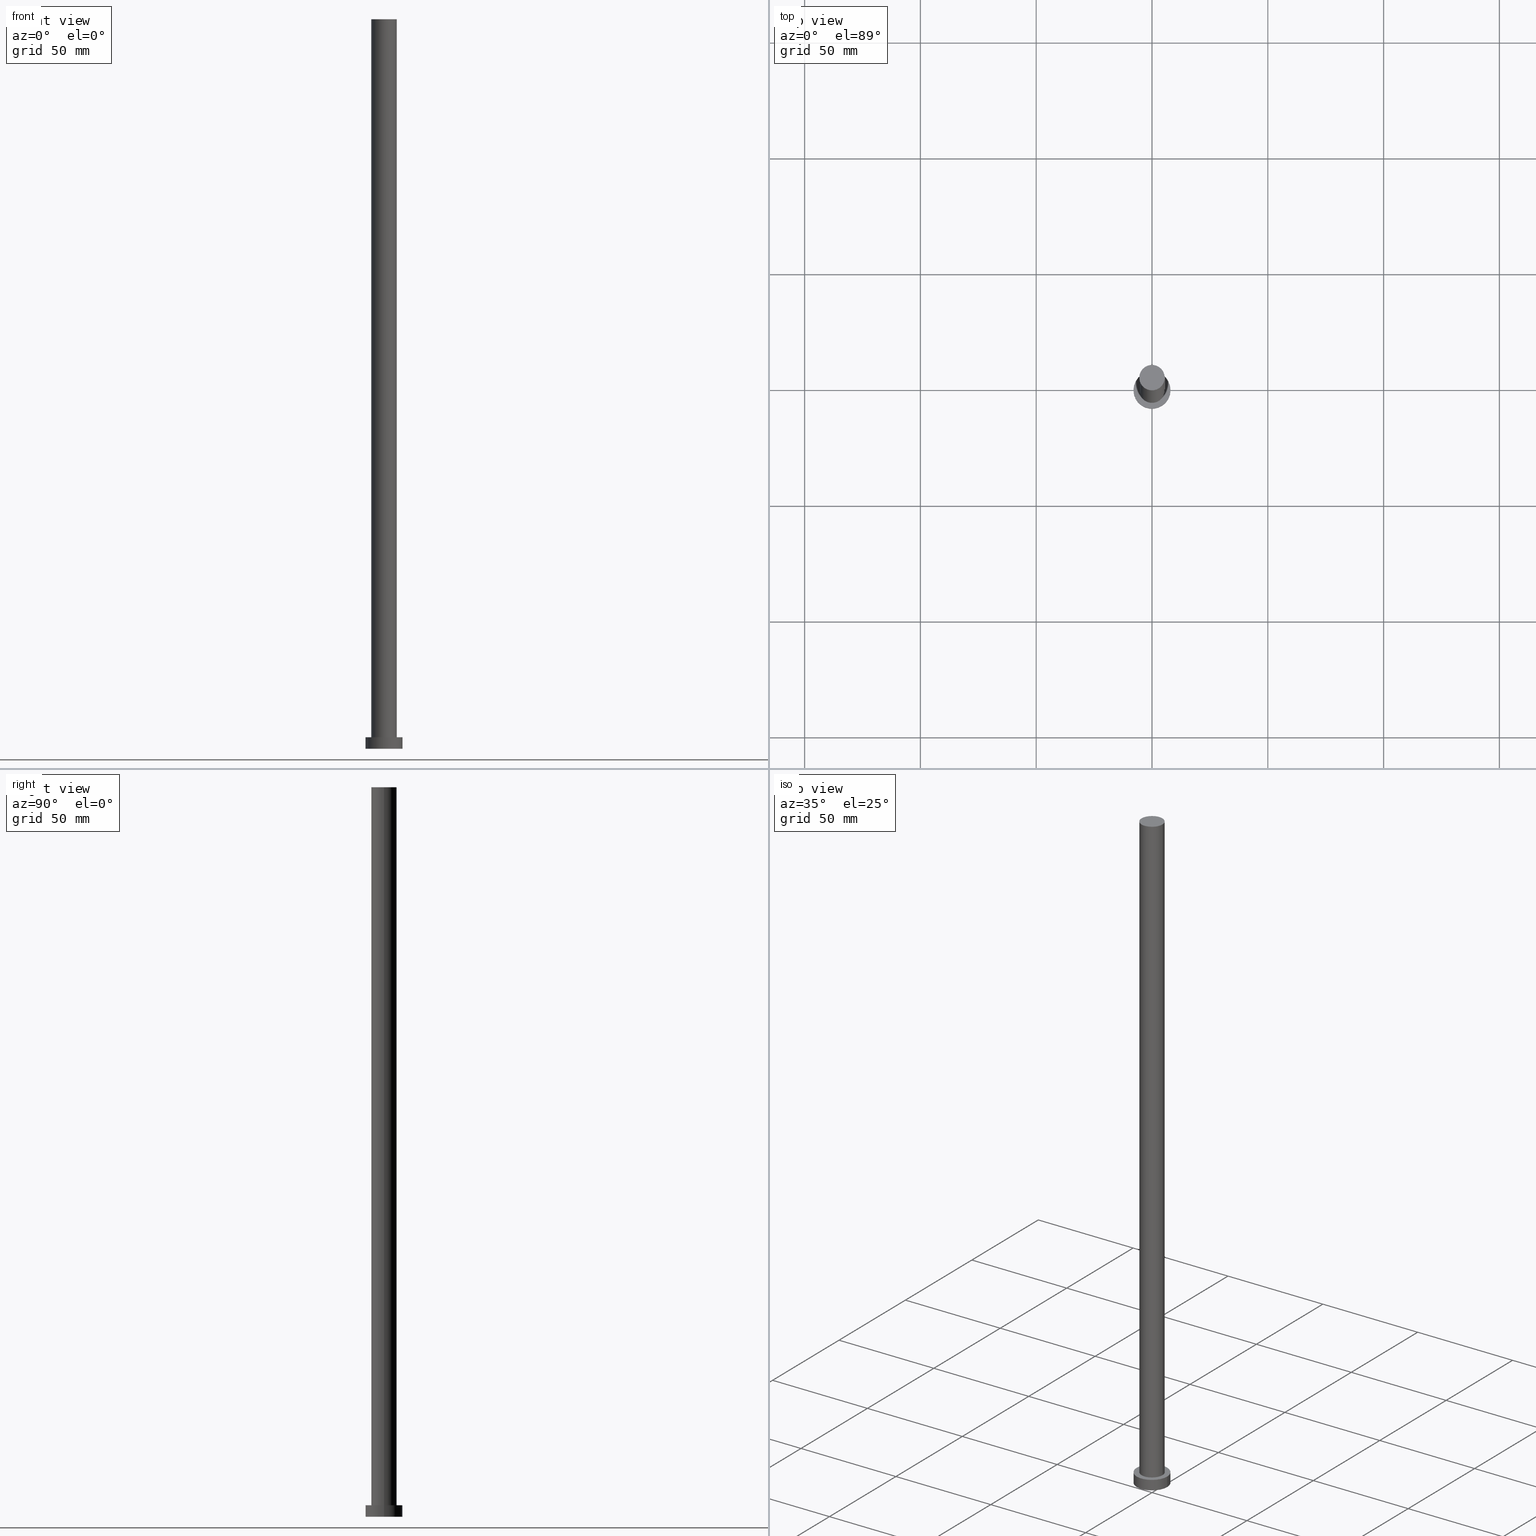
[diagram: canonical four-view strip — front | top / right | iso, engineering-drawing reading convention]
A machine part, canonical four-view strip (front | top / right | iso — engineering-drawing reading convention). The complete STEP part file that produces these views, byte-faithful:
ISO-10303-21;
HEADER;
FILE_DESCRIPTION (( 'STEP AP203' ),
    '1' );
FILE_NAME ('8d47.STEP',
    '2023-02-13T11:09:51',
    ( '' ),
    ( '' ),
    'SwSTEP 2.0',
    'SolidWorks 2019',
    '' );
FILE_SCHEMA (( 'CONFIG_CONTROL_DESIGN' ));
ENDSEC;

DATA;
#1 = CC_DESIGN_PERSON_AND_ORGANIZATION_ASSIGNMENT ( #223, #5, ( #146 ) ) ;
#2 = CIRCLE ( 'NONE', #41, 5.500000000000000000 ) ;
#3 = AXIS2_PLACEMENT_3D ( 'NONE', #214, #64, #16 ) ;
#4 = VECTOR ( 'NONE', #94, 1000.000000000000000 ) ;
#5 = PERSON_AND_ORGANIZATION_ROLE ( 'creator' ) ;
#6 = ORIENTED_EDGE ( 'NONE', *, *, #57, .F. ) ;
#7 = MANIFOLD_SOLID_BREP ( 'P�idat vysunut�m3', #63 ) ;
#8 = APPLICATION_PROTOCOL_DEFINITION ( 'international standard', 'config_control_design', 1994, #147 ) ;
#9 = CARTESIAN_POINT ( 'NONE',  ( 0.000000000000000000, 0.000000000000000000, 5.000000000000000000 ) ) ;
#10 = APPROVAL ( #216, 'NEUR�EN�' ) ;
#11 = CC_DESIGN_PERSON_AND_ORGANIZATION_ASSIGNMENT ( #204, #191, ( #115 ) ) ;
#12 = CC_DESIGN_APPROVAL ( #10, ( #220 ) ) ;
#13 = EDGE_LOOP ( 'NONE', ( #209, #43 ) ) ;
#14 = VERTEX_POINT ( 'NONE', #134 ) ;
#15 = DIRECTION ( 'NONE',  ( 1.000000000000000000, 0.000000000000000000, 0.000000000000000000 ) ) ;
#16 = DIRECTION ( 'NONE',  ( -1.000000000000000000, 0.000000000000000000, 0.000000000000000000 ) ) ;
#17 = ORIENTED_EDGE ( 'NONE', *, *, #199, .F. ) ;
#18 = COORDINATED_UNIVERSAL_TIME_OFFSET ( 1, 0, .AHEAD. ) ;
#19 = LINE ( 'NONE', #161, #21 ) ;
#20 = CIRCLE ( 'NONE', #143, 5.500000000000000000 ) ;
#21 = VECTOR ( 'NONE', #131, 1000.000000000000000 ) ;
#22 = DIRECTION ( 'NONE',  ( -1.000000000000000000, 0.000000000000000000, 0.000000000000000000 ) ) ;
#23 = APPLICATION_CONTEXT ( 'configuration controlled 3d designs of mechanical parts and assemblies' ) ;
#24 = EDGE_CURVE ( 'NONE', #231, #202, #130, .T. ) ;
#25 = ORIENTED_EDGE ( 'NONE', *, *, #57, .T. ) ;
#26 = CARTESIAN_POINT ( 'NONE',  ( 0.000000000000000000, 0.000000000000000000, 315.0000000000000000 ) ) ;
#27 = ORGANIZATION ( 'NEUR�EN�', 'NEUR�EN�', '' ) ;
#28 = CC_DESIGN_PERSON_AND_ORGANIZATION_ASSIGNMENT ( #60, #196, ( #58 ) ) ;
#29 = FACE_OUTER_BOUND ( 'NONE', #13, .T. ) ;
#30 = DIRECTION ( 'NONE',  ( 1.000000000000000000, 0.000000000000000000, 0.000000000000000000 ) ) ;
#31 = DIRECTION ( 'NONE',  ( 1.000000000000000000, 0.000000000000000000, 0.000000000000000000 ) ) ;
#32 = SECURITY_CLASSIFICATION_LEVEL ( 'unclassified' ) ;
#33 = COORDINATED_UNIVERSAL_TIME_OFFSET ( 1, 0, .AHEAD. ) ;
#34 = CARTESIAN_POINT ( 'NONE',  ( 0.000000000000000000, 0.000000000000000000, 315.0000000000000000 ) ) ;
#35 = PERSON_AND_ORGANIZATION_ROLE ( 'classification_officer' ) ;
#36 = FACE_BOUND ( 'NONE', #228, .T. ) ;
#37 = AXIS2_PLACEMENT_3D ( 'NONE', #26, #129, #47 ) ;
#38 = CALENDAR_DATE ( 2023, 13, 2 ) ;
#39 = CALENDAR_DATE ( 2023, 13, 2 ) ;
#40 = DIRECTION ( 'NONE',  ( -0.000000000000000000, -0.000000000000000000, -1.000000000000000000 ) ) ;
#41 = AXIS2_PLACEMENT_3D ( 'NONE', #59, #140, #210 ) ;
#42 = LINE ( 'NONE', #89, #128 ) ;
#43 = ORIENTED_EDGE ( 'NONE', *, *, #184, .T. ) ;
#44 = CARTESIAN_POINT ( 'NONE',  ( -5.500000000000000000, 0.000000000000000000, 315.0000000000000000 ) ) ;
#45 = APPROVAL_STATUS ( 'not_yet_approved' ) ;
#46 = CARTESIAN_POINT ( 'NONE',  ( 8.000000000000000000, 9.797174393178825657E-16, 5.000000000000000000 ) ) ;
#47 = DIRECTION ( 'NONE',  ( 1.000000000000000000, 0.000000000000000000, 0.000000000000000000 ) ) ;
#48 = EDGE_CURVE ( 'NONE', #253, #14, #69, .T. ) ;
#49 =( NAMED_UNIT ( * ) PLANE_ANGLE_UNIT ( ) SI_UNIT ( $, .RADIAN. ) );
#50 = CARTESIAN_POINT ( 'NONE',  ( 0.000000000000000000, 0.000000000000000000, 0.000000000000000000 ) ) ;
#51 = EDGE_LOOP ( 'NONE', ( #100, #82, #249, #17 ) ) ;
#52 = LOCAL_TIME ( 12, 9, 51.00000000000000000, #144 ) ;
#53 = EDGE_CURVE ( 'NONE', #174, #14, #201, .T. ) ;
#54 = ADVANCED_FACE ( 'NONE', ( #97 ), #197, .T. ) ;
#55 = AXIS2_PLACEMENT_3D ( 'NONE', #34, #101, #62 ) ;
#56 = APPROVAL_DATE_TIME ( #254, #245 ) ;
#57 = EDGE_CURVE ( 'NONE', #240, #148, #203, .T. ) ;
#58 = PRODUCT_DEFINITION_FORMATION_WITH_SPECIFIED_SOURCE ( 'LIBOVOLN�', '', #115, .NOT_KNOWN. ) ;
#59 = CARTESIAN_POINT ( 'NONE',  ( 0.000000000000000000, 0.000000000000000000, 5.000000000000000000 ) ) ;
#60 = PERSON_AND_ORGANIZATION ( #127, #27 ) ;
#61 = ORIENTED_EDGE ( 'NONE', *, *, #66, .T. ) ;
#62 = DIRECTION ( 'NONE',  ( 1.000000000000000000, 0.000000000000000000, -0.000000000000000000 ) ) ;
#63 = CLOSED_SHELL ( 'NONE', ( #54, #194, #183, #77, #107, #190, #121 ) ) ;
#64 = DIRECTION ( 'NONE',  ( -0.000000000000000000, -0.000000000000000000, -1.000000000000000000 ) ) ;
#65 = CC_DESIGN_APPROVAL ( #137, ( #146 ) ) ;
#66 = EDGE_CURVE ( 'NONE', #174, #250, #244, .T. ) ;
#67 = DIRECTION ( 'NONE',  ( -1.000000000000000000, 0.000000000000000000, 0.000000000000000000 ) ) ;
#68 = CYLINDRICAL_SURFACE ( 'NONE', #213, 5.500000000000000000 ) ;
#69 = CIRCLE ( 'NONE', #93, 8.000000000000000000 ) ;
#70 = DIRECTION ( 'NONE',  ( 0.000000000000000000, 0.000000000000000000, 1.000000000000000000 ) ) ;
#71 = FACE_OUTER_BOUND ( 'NONE', #114, .T. ) ;
#72 = ORIENTED_EDGE ( 'NONE', *, *, #24, .F. ) ;
#73 = CYLINDRICAL_SURFACE ( 'NONE', #95, 8.000000000000000000 ) ;
#74 = EDGE_LOOP ( 'NONE', ( #186, #189, #168, #110 ) ) ;
#75 = PRODUCT_DEFINITION_SHAPE ( 'NONE', 'NONE',  #146 ) ;
#76 = DATE_AND_TIME ( #179, #135 ) ;
#77 = ADVANCED_FACE ( 'NONE', ( #36, #207 ), #150, .T. ) ;
#78 = AXIS2_PLACEMENT_3D ( 'NONE', #236, #81, #234 ) ;
#79 = APPROVAL_STATUS ( 'not_yet_approved' ) ;
#80 = LOCAL_TIME ( 12, 9, 51.00000000000000000, #18 ) ;
#81 = DIRECTION ( 'NONE',  ( 0.000000000000000000, 0.000000000000000000, 1.000000000000000000 ) ) ;
#82 = ORIENTED_EDGE ( 'NONE', *, *, #227, .T. ) ;
#83 = PLANE ( 'NONE',  #78 ) ;
#84 = PERSON_AND_ORGANIZATION_ROLE ( 'creator' ) ;
#85 = CARTESIAN_POINT ( 'NONE',  ( -8.000000000000000000, 0.000000000000000000, 5.000000000000000000 ) ) ;
#86 = CC_DESIGN_PERSON_AND_ORGANIZATION_ASSIGNMENT ( #208, #84, ( #58 ) ) ;
#87 = APPROVAL_ROLE ( '' ) ;
#88 =( GEOMETRIC_REPRESENTATION_CONTEXT ( 3 ) GLOBAL_UNCERTAINTY_ASSIGNED_CONTEXT ( ( #102 ) ) GLOBAL_UNIT_ASSIGNED_CONTEXT ( ( #200, #49, #112 ) ) REPRESENTATION_CONTEXT ( 'NONE', 'WORKASPACE' ) );
#89 = CARTESIAN_POINT ( 'NONE',  ( 5.500000000000000000, 6.735557395310442023E-16, 315.0000000000000000 ) ) ;
#90 = DATE_TIME_ROLE ( 'creation_date' ) ;
#91 = DIRECTION ( 'NONE',  ( 1.000000000000000000, 0.000000000000000000, 0.000000000000000000 ) ) ;
#92 = APPROVAL_ROLE ( '' ) ;
#93 = AXIS2_PLACEMENT_3D ( 'NONE', #111, #132, #91 ) ;
#94 = DIRECTION ( 'NONE',  ( -0.000000000000000000, -0.000000000000000000, -1.000000000000000000 ) ) ;
#95 = AXIS2_PLACEMENT_3D ( 'NONE', #217, #40, #67 ) ;
#96 = ORIENTED_EDGE ( 'NONE', *, *, #104, .F. ) ;
#97 = FACE_OUTER_BOUND ( 'NONE', #51, .T. ) ;
#98 = CARTESIAN_POINT ( 'NONE',  ( -8.000000000000000000, 0.000000000000000000, 5.000000000000000000 ) ) ;
#99 = COORDINATED_UNIVERSAL_TIME_OFFSET ( 1, 0, .AHEAD. ) ;
#100 = ORIENTED_EDGE ( 'NONE', *, *, #184, .F. ) ;
#101 = DIRECTION ( 'NONE',  ( 0.000000000000000000, 0.000000000000000000, 1.000000000000000000 ) ) ;
#102 = UNCERTAINTY_MEASURE_WITH_UNIT (LENGTH_MEASURE( 1.000000000000000082E-05 ), #200, 'distance_accuracy_value', 'NONE');
#103 = CARTESIAN_POINT ( 'NONE',  ( 0.000000000000000000, 0.000000000000000000, 315.0000000000000000 ) ) ;
#104 = EDGE_CURVE ( 'NONE', #250, #174, #162, .T. ) ;
#105 = DESIGN_CONTEXT ( 'detailed design', #147, 'design' ) ;
#106 = AXIS2_PLACEMENT_3D ( 'NONE', #252, #195, #15 ) ;
#107 = ADVANCED_FACE ( 'NONE', ( #251 ), #83, .F. ) ;
#108 = CIRCLE ( 'NONE', #237, 8.000000000000000000 ) ;
#109 = COORDINATED_UNIVERSAL_TIME_OFFSET ( 1, 0, .AHEAD. ) ;
#110 = ORIENTED_EDGE ( 'NONE', *, *, #212, .T. ) ;
#111 = CARTESIAN_POINT ( 'NONE',  ( 0.000000000000000000, 0.000000000000000000, 0.000000000000000000 ) ) ;
#112 =( NAMED_UNIT ( * ) SI_UNIT ( $, .STERADIAN. ) SOLID_ANGLE_UNIT ( ) );
#113 = CARTESIAN_POINT ( 'NONE',  ( 5.500000000000000000, 6.735557395310442023E-16, 315.0000000000000000 ) ) ;
#114 = EDGE_LOOP ( 'NONE', ( #151, #72, #170, #25 ) ) ;
#115 = PRODUCT ( '8d47', '8d47', '', ( #247 ) ) ;
#116 = CALENDAR_DATE ( 2023, 13, 2 ) ;
#117 = CALENDAR_DATE ( 2023, 13, 2 ) ;
#118 = DATE_AND_TIME ( #117, #52 ) ;
#119 = DIRECTION ( 'NONE',  ( 1.000000000000000000, 0.000000000000000000, -0.000000000000000000 ) ) ;
#120 = PLANE ( 'NONE',  #55 ) ;
#121 = ADVANCED_FACE ( 'NONE', ( #29 ), #120, .T. ) ;
#122 = DIRECTION ( 'NONE',  ( -1.000000000000000000, 0.000000000000000000, 0.000000000000000000 ) ) ;
#123 = ORIENTED_EDGE ( 'NONE', *, *, #48, .T. ) ;
#124 = PERSON_AND_ORGANIZATION ( #127, #27 ) ;
#125 = DATE_AND_TIME ( #38, #235 ) ;
#126 = CARTESIAN_POINT ( 'NONE',  ( 5.500000000000000000, 6.735557395310442023E-16, 5.000000000000000000 ) ) ;
#127 = PERSON ( 'NEUR�EN�', 'NEUR�EN�', 'NEUR�EN�', ('NEUR�EN�'), ('NEUR�EN�'), ('NEUR�EN�') ) ;
#128 = VECTOR ( 'NONE', #222, 1000.000000000000000 ) ;
#129 = DIRECTION ( 'NONE',  ( 0.000000000000000000, 0.000000000000000000, 1.000000000000000000 ) ) ;
#130 = CIRCLE ( 'NONE', #37, 5.500000000000000000 ) ;
#131 = DIRECTION ( 'NONE',  ( -0.000000000000000000, -0.000000000000000000, -1.000000000000000000 ) ) ;
#132 = DIRECTION ( 'NONE',  ( 0.000000000000000000, 0.000000000000000000, 1.000000000000000000 ) ) ;
#133 = DIRECTION ( 'NONE',  ( 0.000000000000000000, 0.000000000000000000, 1.000000000000000000 ) ) ;
#134 = CARTESIAN_POINT ( 'NONE',  ( -8.000000000000000000, 0.000000000000000000, 0.000000000000000000 ) ) ;
#135 = LOCAL_TIME ( 12, 9, 51.00000000000000000, #109 ) ;
#136 = PRODUCT_RELATED_PRODUCT_CATEGORY ( 'detail', '', ( #115 ) ) ;
#137 = APPROVAL ( #79, 'NEUR�EN�' ) ;
#138 = AXIS2_PLACEMENT_3D ( 'NONE', #154, #173, #119 ) ;
#139 = DIRECTION ( 'NONE',  ( 0.000000000000000000, 0.000000000000000000, 1.000000000000000000 ) ) ;
#140 = DIRECTION ( 'NONE',  ( 0.000000000000000000, 0.000000000000000000, 1.000000000000000000 ) ) ;
#141 = APPROVAL_DATE_TIME ( #160, #10 ) ;
#142 = EDGE_CURVE ( 'NONE', #148, #240, #2, .T. ) ;
#143 = AXIS2_PLACEMENT_3D ( 'NONE', #103, #177, #178 ) ;
#144 = COORDINATED_UNIVERSAL_TIME_OFFSET ( 1, 0, .AHEAD. ) ;
#145 = ORIENTED_EDGE ( 'NONE', *, *, #212, .F. ) ;
#146 = PRODUCT_DEFINITION ( 'NEZN�M�', '', #58, #105 ) ;
#147 = APPLICATION_CONTEXT ( 'configuration controlled 3d designs of mechanical parts and assemblies' ) ;
#148 = VERTEX_POINT ( 'NONE', #126 ) ;
#149 = ORIENTED_EDGE ( 'NONE', *, *, #53, .F. ) ;
#150 = PLANE ( 'NONE',  #138 ) ;
#151 = ORIENTED_EDGE ( 'NONE', *, *, #227, .F. ) ;
#152 = ORIENTED_EDGE ( 'NONE', *, *, #238, .T. ) ;
#153 = LINE ( 'NONE', #224, #4 ) ;
#154 = CARTESIAN_POINT ( 'NONE',  ( 0.000000000000000000, 0.000000000000000000, 5.000000000000000000 ) ) ;
#155 = FACE_OUTER_BOUND ( 'NONE', #74, .T. ) ;
#156 = CARTESIAN_POINT ( 'NONE',  ( 0.000000000000000000, 0.000000000000000000, 315.0000000000000000 ) ) ;
#157 = DATE_TIME_ROLE ( 'classification_date' ) ;
#158 = CC_DESIGN_SECURITY_CLASSIFICATION ( #220, ( #58 ) ) ;
#159 = CC_DESIGN_DATE_AND_TIME_ASSIGNMENT ( #125, #157, ( #220 ) ) ;
#160 = DATE_AND_TIME ( #39, #80 ) ;
#161 = CARTESIAN_POINT ( 'NONE',  ( -5.500000000000000000, 0.000000000000000000, 315.0000000000000000 ) ) ;
#162 = CIRCLE ( 'NONE', #180, 8.000000000000000000 ) ;
#163 = LOCAL_TIME ( 12, 9, 51.00000000000000000, #33 ) ;
#164 = ORIENTED_EDGE ( 'NONE', *, *, #142, .F. ) ;
#165 = CARTESIAN_POINT ( 'NONE',  ( 0.000000000000000000, 0.000000000000000000, 315.0000000000000000 ) ) ;
#166 = DIRECTION ( 'NONE',  ( -0.000000000000000000, -0.000000000000000000, -1.000000000000000000 ) ) ;
#167 = AXIS2_PLACEMENT_3D ( 'NONE', #232, #139, #205 ) ;
#168 = ORIENTED_EDGE ( 'NONE', *, *, #53, .T. ) ;
#169 = APPLICATION_PROTOCOL_DEFINITION ( 'international standard', 'config_control_design', 1994, #23 ) ;
#170 = ORIENTED_EDGE ( 'NONE', *, *, #199, .T. ) ;
#171 = DIRECTION ( 'NONE',  ( 0.000000000000000000, 0.000000000000000000, 1.000000000000000000 ) ) ;
#172 = APPROVAL_PERSON_ORGANIZATION ( #248, #137, #215 ) ;
#173 = DIRECTION ( 'NONE',  ( 0.000000000000000000, 0.000000000000000000, 1.000000000000000000 ) ) ;
#174 = VERTEX_POINT ( 'NONE', #85 ) ;
#175 = DIRECTION ( 'NONE',  ( -0.000000000000000000, -0.000000000000000000, -1.000000000000000000 ) ) ;
#176 = APPROVAL_PERSON_ORGANIZATION ( #198, #10, #87 ) ;
#177 = DIRECTION ( 'NONE',  ( 0.000000000000000000, 0.000000000000000000, 1.000000000000000000 ) ) ;
#178 = DIRECTION ( 'NONE',  ( 1.000000000000000000, 0.000000000000000000, 0.000000000000000000 ) ) ;
#179 = CALENDAR_DATE ( 2023, 13, 2 ) ;
#180 = AXIS2_PLACEMENT_3D ( 'NONE', #9, #171, #31 ) ;
#181 = AXIS2_PLACEMENT_3D ( 'NONE', #50, #133, #30 ) ;
#182 = PERSON_AND_ORGANIZATION ( #127, #27 ) ;
#183 = ADVANCED_FACE ( 'NONE', ( #155 ), #255, .T. ) ;
#184 = EDGE_CURVE ( 'NONE', #202, #231, #20, .T. ) ;
#185 = AXIS2_PLACEMENT_3D ( 'NONE', #156, #175, #122 ) ;
#186 = ORIENTED_EDGE ( 'NONE', *, *, #238, .F. ) ;
#187 = APPROVAL_DATE_TIME ( #118, #137 ) ;
#188 = APPROVAL_PERSON_ORGANIZATION ( #182, #245, #92 ) ;
#189 = ORIENTED_EDGE ( 'NONE', *, *, #66, .F. ) ;
#190 = ADVANCED_FACE ( 'NONE', ( #71 ), #68, .T. ) ;
#191 = PERSON_AND_ORGANIZATION_ROLE ( 'design_owner' ) ;
#192 = EDGE_LOOP ( 'NONE', ( #96, #152, #123, #149 ) ) ;
#193 = ORIENTED_EDGE ( 'NONE', *, *, #104, .T. ) ;
#194 = ADVANCED_FACE ( 'NONE', ( #241 ), #73, .T. ) ;
#195 = DIRECTION ( 'NONE',  ( 0.000000000000000000, 0.000000000000000000, 1.000000000000000000 ) ) ;
#196 = PERSON_AND_ORGANIZATION_ROLE ( 'design_supplier' ) ;
#197 = CYLINDRICAL_SURFACE ( 'NONE', #185, 5.500000000000000000 ) ;
#198 = PERSON_AND_ORGANIZATION ( #127, #27 ) ;
#199 = EDGE_CURVE ( 'NONE', #231, #240, #19, .T. ) ;
#200 =( LENGTH_UNIT ( ) NAMED_UNIT ( * ) SI_UNIT ( .MILLI., .METRE. ) );
#201 = LINE ( 'NONE', #98, #206 ) ;
#202 = VERTEX_POINT ( 'NONE', #113 ) ;
#203 = CIRCLE ( 'NONE', #106, 5.500000000000000000 ) ;
#204 = PERSON_AND_ORGANIZATION ( #127, #27 ) ;
#205 = DIRECTION ( 'NONE',  ( 1.000000000000000000, 0.000000000000000000, 0.000000000000000000 ) ) ;
#206 = VECTOR ( 'NONE', #211, 1000.000000000000000 ) ;
#207 = FACE_OUTER_BOUND ( 'NONE', #233, .T. ) ;
#208 = PERSON_AND_ORGANIZATION ( #127, #27 ) ;
#209 = ORIENTED_EDGE ( 'NONE', *, *, #24, .T. ) ;
#210 = DIRECTION ( 'NONE',  ( 1.000000000000000000, 0.000000000000000000, 0.000000000000000000 ) ) ;
#211 = DIRECTION ( 'NONE',  ( -0.000000000000000000, -0.000000000000000000, -1.000000000000000000 ) ) ;
#212 = EDGE_CURVE ( 'NONE', #14, #253, #108, .T. ) ;
#213 = AXIS2_PLACEMENT_3D ( 'NONE', #165, #166, #22 ) ;
#214 = CARTESIAN_POINT ( 'NONE',  ( 0.000000000000000000, 0.000000000000000000, 5.000000000000000000 ) ) ;
#215 = APPROVAL_ROLE ( '' ) ;
#216 = APPROVAL_STATUS ( 'not_yet_approved' ) ;
#217 = CARTESIAN_POINT ( 'NONE',  ( 0.000000000000000000, 0.000000000000000000, 5.000000000000000000 ) ) ;
#218 = SHAPE_DEFINITION_REPRESENTATION ( #75, #226 ) ;
#219 = CC_DESIGN_DATE_AND_TIME_ASSIGNMENT ( #76, #90, ( #146 ) ) ;
#220 = SECURITY_CLASSIFICATION ( '', '', #32 ) ;
#221 = DIRECTION ( 'NONE',  ( 1.000000000000000000, 0.000000000000000000, 0.000000000000000000 ) ) ;
#222 = DIRECTION ( 'NONE',  ( -0.000000000000000000, -0.000000000000000000, -1.000000000000000000 ) ) ;
#223 = PERSON_AND_ORGANIZATION ( #127, #27 ) ;
#224 = CARTESIAN_POINT ( 'NONE',  ( 8.000000000000000000, 9.797174393178825657E-16, 5.000000000000000000 ) ) ;
#225 = CC_DESIGN_APPROVAL ( #245, ( #58 ) ) ;
#226 = ADVANCED_BREP_SHAPE_REPRESENTATION ( '8d47', ( #7, #181 ), #88 ) ;
#227 = EDGE_CURVE ( 'NONE', #202, #148, #42, .T. ) ;
#228 = EDGE_LOOP ( 'NONE', ( #6, #164 ) ) ;
#229 = EDGE_LOOP ( 'NONE', ( #145, #230 ) ) ;
#230 = ORIENTED_EDGE ( 'NONE', *, *, #48, .F. ) ;
#231 = VERTEX_POINT ( 'NONE', #44 ) ;
#232 = CARTESIAN_POINT ( 'NONE',  ( 0.000000000000000000, 0.000000000000000000, 5.000000000000000000 ) ) ;
#233 = EDGE_LOOP ( 'NONE', ( #61, #193 ) ) ;
#234 = DIRECTION ( 'NONE',  ( 1.000000000000000000, 0.000000000000000000, -0.000000000000000000 ) ) ;
#235 = LOCAL_TIME ( 12, 9, 51.00000000000000000, #99 ) ;
#236 = CARTESIAN_POINT ( 'NONE',  ( 0.000000000000000000, 0.000000000000000000, 0.000000000000000000 ) ) ;
#237 = AXIS2_PLACEMENT_3D ( 'NONE', #239, #70, #221 ) ;
#238 = EDGE_CURVE ( 'NONE', #250, #253, #153, .T. ) ;
#239 = CARTESIAN_POINT ( 'NONE',  ( 0.000000000000000000, 0.000000000000000000, 0.000000000000000000 ) ) ;
#240 = VERTEX_POINT ( 'NONE', #246 ) ;
#241 = FACE_OUTER_BOUND ( 'NONE', #192, .T. ) ;
#242 = CC_DESIGN_PERSON_AND_ORGANIZATION_ASSIGNMENT ( #124, #35, ( #220 ) ) ;
#243 = CARTESIAN_POINT ( 'NONE',  ( 8.000000000000000000, 9.797174393178825657E-16, 0.000000000000000000 ) ) ;
#244 = CIRCLE ( 'NONE', #167, 8.000000000000000000 ) ;
#245 = APPROVAL ( #45, 'NEUR�EN�' ) ;
#246 = CARTESIAN_POINT ( 'NONE',  ( -5.500000000000000000, 0.000000000000000000, 5.000000000000000000 ) ) ;
#247 = MECHANICAL_CONTEXT ( 'NONE', #23, 'mechanical' ) ;
#248 = PERSON_AND_ORGANIZATION ( #127, #27 ) ;
#249 = ORIENTED_EDGE ( 'NONE', *, *, #142, .T. ) ;
#250 = VERTEX_POINT ( 'NONE', #46 ) ;
#251 = FACE_OUTER_BOUND ( 'NONE', #229, .T. ) ;
#252 = CARTESIAN_POINT ( 'NONE',  ( 0.000000000000000000, 0.000000000000000000, 5.000000000000000000 ) ) ;
#253 = VERTEX_POINT ( 'NONE', #243 ) ;
#254 = DATE_AND_TIME ( #116, #163 ) ;
#255 = CYLINDRICAL_SURFACE ( 'NONE', #3, 8.000000000000000000 ) ;
ENDSEC;
END-ISO-10303-21;
